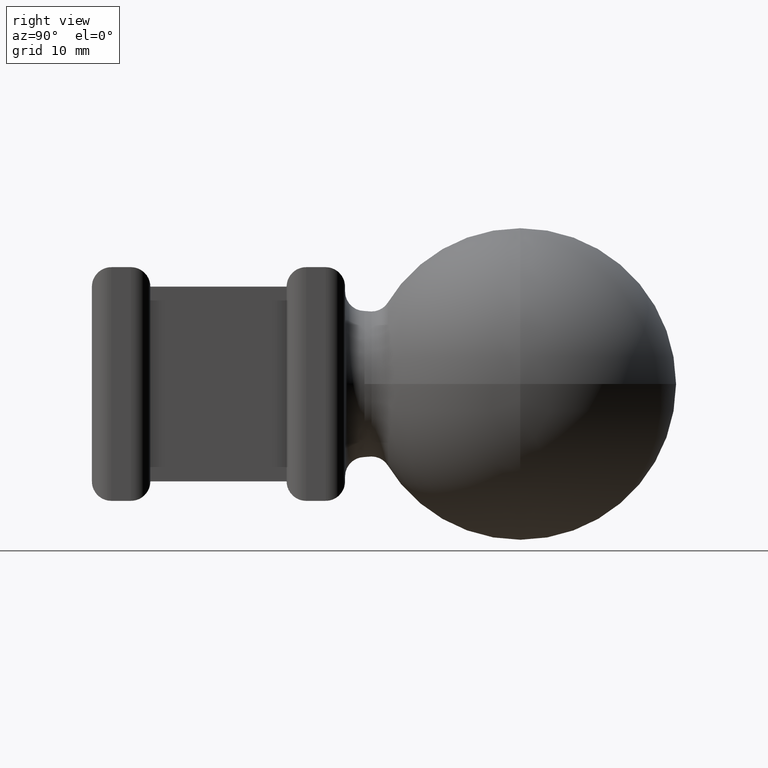
[diagram: clean part render]
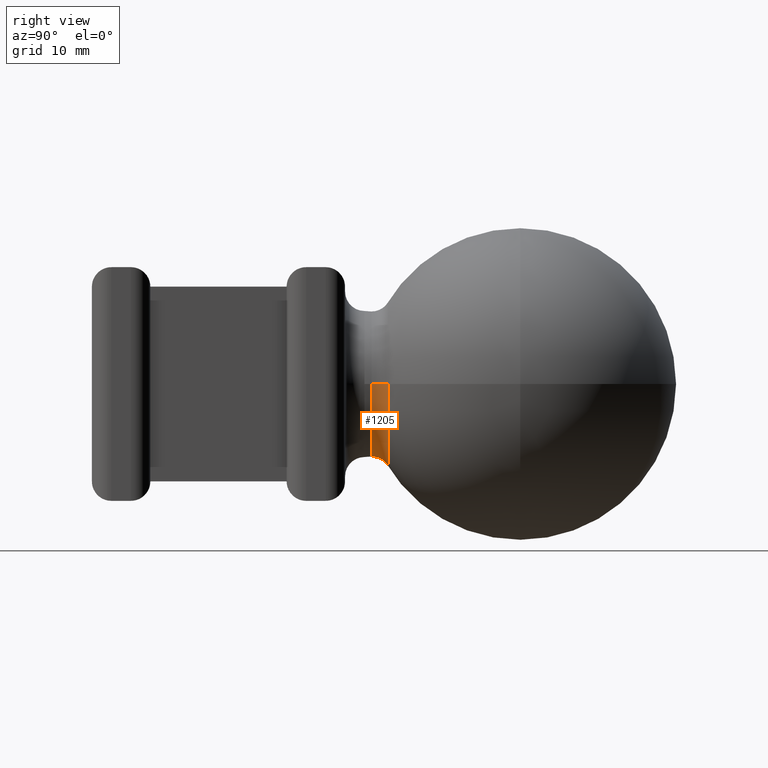
[diagram: same view with one face highlighted and labeled with its STEP entity id]
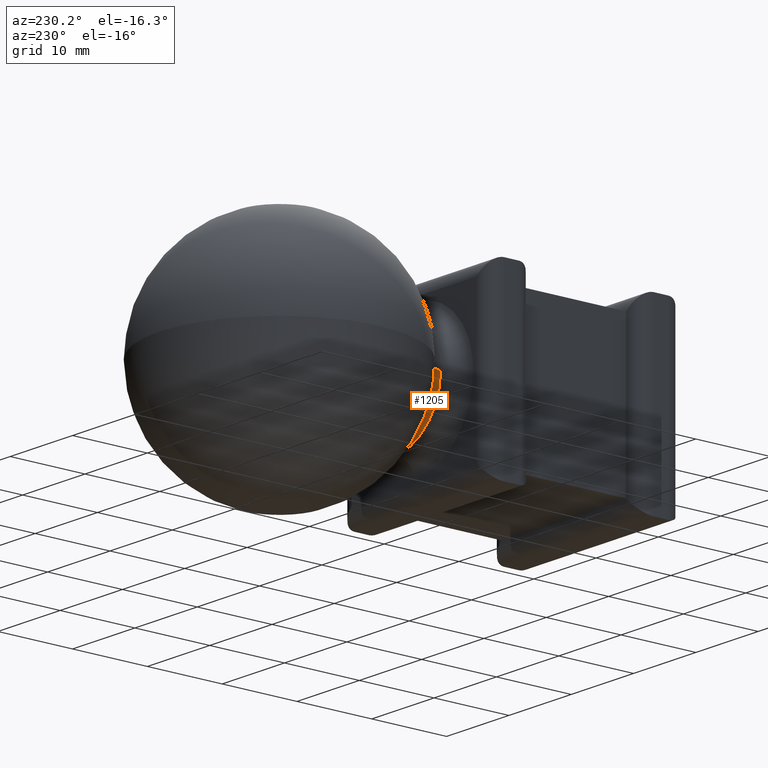
[diagram: same view with one face highlighted and labeled with its STEP entity id]
A machine part, right view. The second image highlights one B-rep face of the part: STEP entity #1205.
A second angle (auxiliary view) of the same face is appended — the face is thin or edge-on in the first view.
In plain terms, the highlighted toroidal blend (fillet) surface has major radius 9.5 mm and minor (blend) radius 2 mm.
Its self-contained STEP definition (entity closure, byte-faithful):
#294 = CIRCLE ( 'NONE', #5603, 2.000000000000000000 ) ;
#340 = EDGE_CURVE ( 'NONE', #4487, #9889, #3750, .T. ) ;
#610 = DIRECTION ( 'NONE',  ( 0.0000000000000000000, 0.0000000000000000000, -1.000000000000000000 ) ) ;
#614 = DIRECTION ( 'NONE',  ( 3.061616997868383000E-017, 1.000000000000000000, 0.0000000000000000000 ) ) ;
#886 = EDGE_CURVE ( 'NONE', #5065, #9889, #8766, .T. ) ;
#963 = CARTESIAN_POINT ( 'NONE',  ( 2.177162226332205100E-017, 28.71111514857934600, 0.0000000000000000000 ) ) ;
#1205 = ADVANCED_FACE ( 'NONE', ( #1562 ), #2507, .F. ) ;
#1373 = DIRECTION ( 'NONE',  ( -3.061616997868383000E-017, -1.000000000000000000, -0.0000000000000000000 ) ) ;
#1455 = CARTESIAN_POINT ( 'NONE',  ( -9.499999999999998200, 28.71111514857934600, 0.0000000000000000000 ) ) ;
#1562 = FACE_OUTER_BOUND ( 'NONE', #2132, .T. ) ;
#1575 = AXIS2_PLACEMENT_3D ( 'NONE', #11128, #614, #5952 ) ;
#2028 = AXIS2_PLACEMENT_3D ( 'NONE', #3678, #6295, #4617 ) ;
#2132 = EDGE_LOOP ( 'NONE', ( #8870, #4767, #11209, #8855 ) ) ;
#2507 = TOROIDAL_SURFACE ( 'NONE', #4506, 9.499999999999998200, 2.000000000000000000 ) ;
#2814 = DIRECTION ( 'NONE',  ( -1.000000000000000000, 3.061616997868383000E-017, 0.0000000000000000000 ) ) ;
#3678 = CARTESIAN_POINT ( 'NONE',  ( 9.499999999999998200, 28.71111514857934600, 1.163414459189985300E-015 ) ) ;
#3750 = CIRCLE ( 'NONE', #8259, 7.499999999999997300 ) ;
#4352 = CARTESIAN_POINT ( 'NONE',  ( 8.444444444444441100, 30.40988013207053000, 0.0000000000000000000 ) ) ;
#4463 = CARTESIAN_POINT ( 'NONE',  ( -8.444444444444441100, 30.40988013207053000, 1.034146185946653300E-015 ) ) ;
#4487 = VERTEX_POINT ( 'NONE', #8694 ) ;
#4506 = AXIS2_PLACEMENT_3D ( 'NONE', #963, #7030, #2814 ) ;
#4617 = DIRECTION ( 'NONE',  ( 1.000000000000000000, 0.0000000000000000000, 1.224646799147353500E-016 ) ) ;
#4767 = ORIENTED_EDGE ( 'NONE', *, *, #886, .T. ) ;
#5065 = VERTEX_POINT ( 'NONE', #4352 ) ;
#5512 = CIRCLE ( 'NONE', #1575, 8.444444444444442900 ) ;
#5603 = AXIS2_PLACEMENT_3D ( 'NONE', #1455, #610, #9195 ) ;
#5952 = DIRECTION ( 'NONE',  ( -1.000000000000000000, 0.0000000000000000000, 0.0000000000000000000 ) ) ;
#6295 = DIRECTION ( 'NONE',  ( -1.224646799147353200E-016, 3.749399456654644000E-033, 1.000000000000000000 ) ) ;
#7030 = DIRECTION ( 'NONE',  ( 3.061616997868383000E-017, 1.000000000000000000, 0.0000000000000000000 ) ) ;
#7425 = DIRECTION ( 'NONE',  ( -1.000000000000000000, 0.0000000000000000000, 0.0000000000000000000 ) ) ;
#7722 = CARTESIAN_POINT ( 'NONE',  ( 7.499999999999997300, 28.71111514857934600, 0.0000000000000000000 ) ) ;
#8259 = AXIS2_PLACEMENT_3D ( 'NONE', #9248, #1373, #7425 ) ;
#8694 = CARTESIAN_POINT ( 'NONE',  ( -7.499999999999997300, 28.71111514857934600, 9.184850993605146000E-016 ) ) ;
#8766 = CIRCLE ( 'NONE', #2028, 2.000000000000000000 ) ;
#8796 = EDGE_CURVE ( 'NONE', #5065, #10635, #5512, .T. ) ;
#8855 = ORIENTED_EDGE ( 'NONE', *, *, #10389, .F. ) ;
#8870 = ORIENTED_EDGE ( 'NONE', *, *, #8796, .F. ) ;
#9195 = DIRECTION ( 'NONE',  ( -1.000000000000000000, 0.0000000000000000000, 0.0000000000000000000 ) ) ;
#9248 = CARTESIAN_POINT ( 'NONE',  ( 2.177162226332213400E-017, 28.71111514857934600, 0.0000000000000000000 ) ) ;
#9889 = VERTEX_POINT ( 'NONE', #7722 ) ;
#10389 = EDGE_CURVE ( 'NONE', #10635, #4487, #294, .T. ) ;
#10635 = VERTEX_POINT ( 'NONE', #4463 ) ;
#11128 = CARTESIAN_POINT ( 'NONE',  ( -4.160774199072170600E-016, 30.40988013207053000, 0.0000000000000000000 ) ) ;
#11209 = ORIENTED_EDGE ( 'NONE', *, *, #340, .F. ) ;